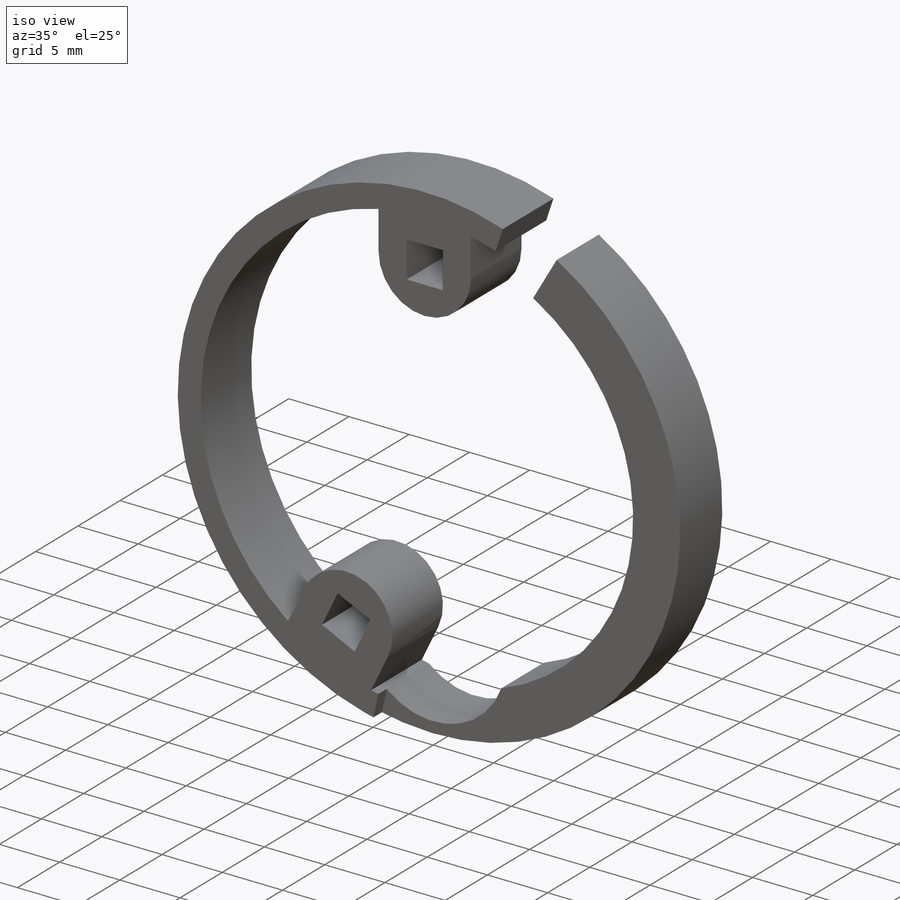
[diagram: iso view]
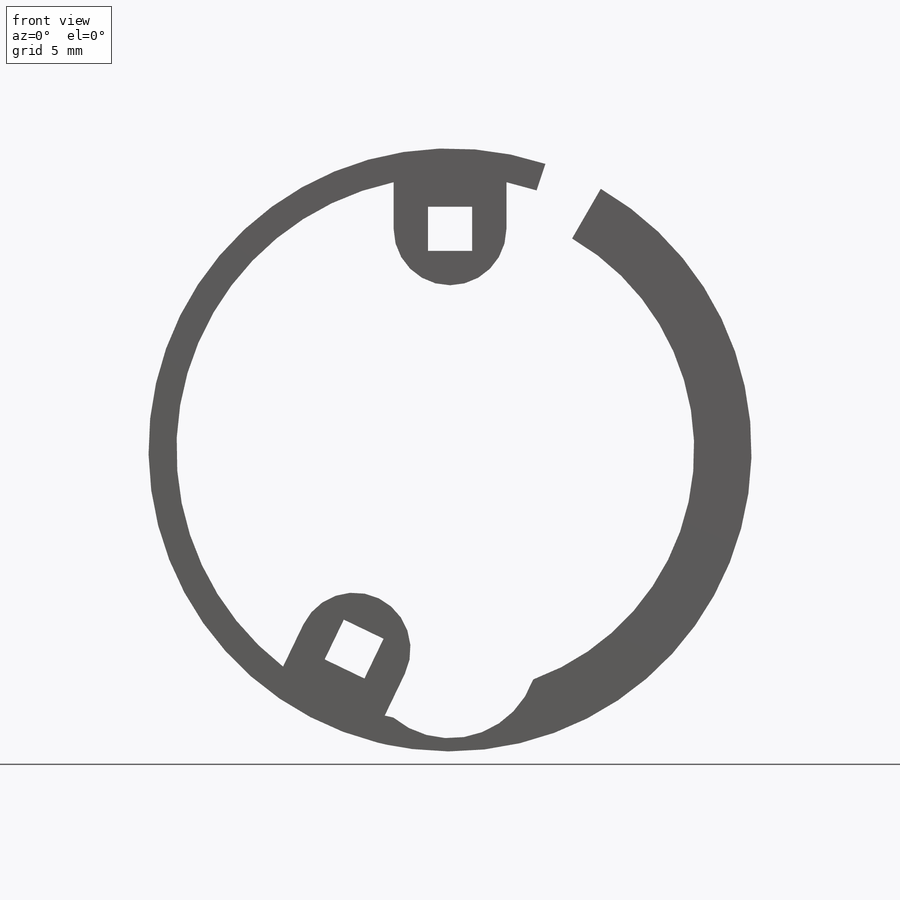
[diagram: front view]
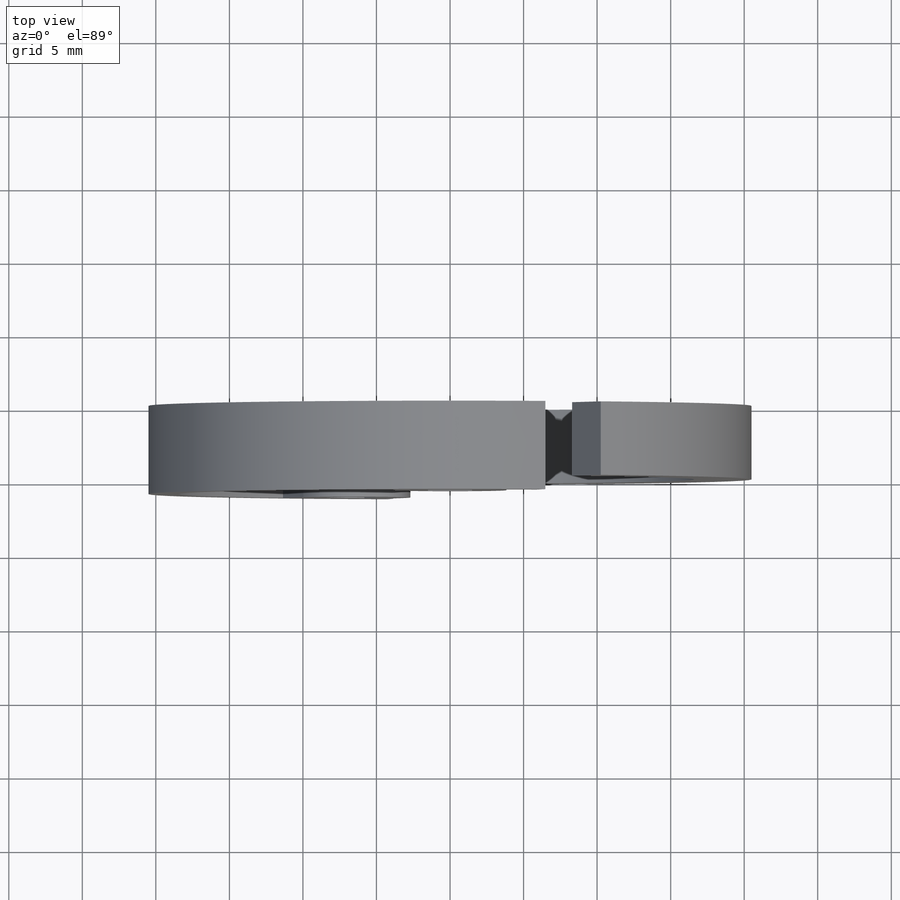
[diagram: top view]
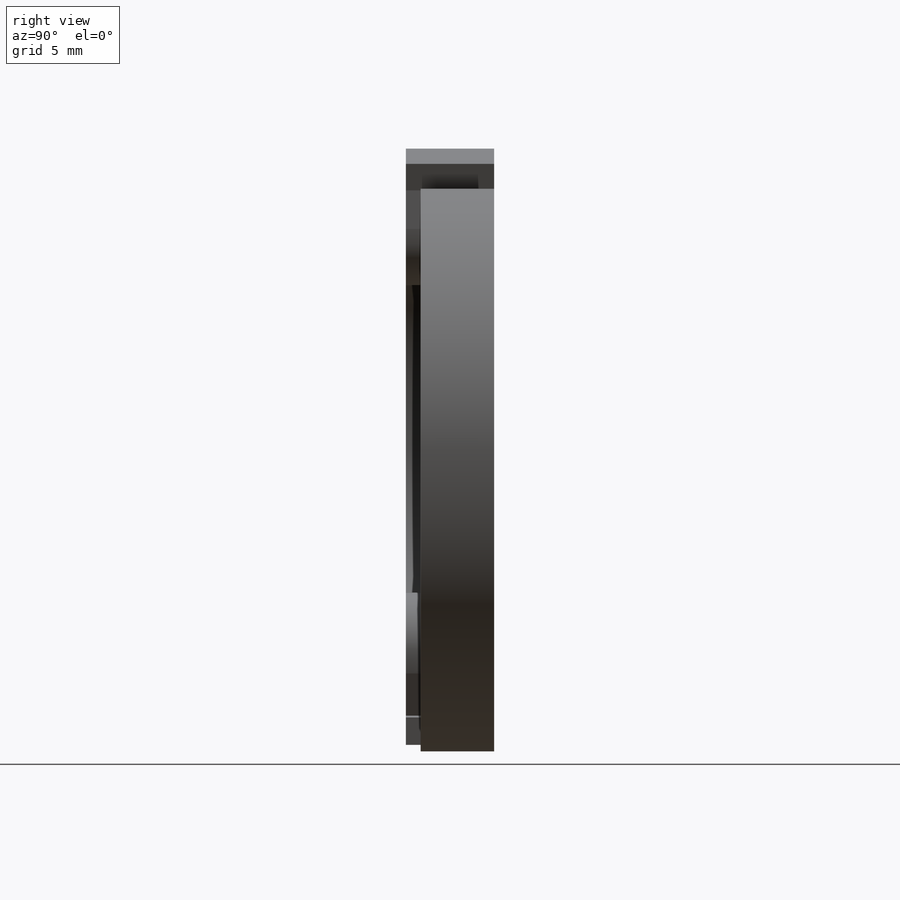
[diagram: right view]
SOLIDWORKS PART (.sldprt)
format: sldprt  version: not decoded by parser v0  size: 311,808 bytes
history: native  units: mm
features: sketch x6, plane x3, extrude x3, material x1, cut_extrude x1 (+10 scaffold rows collapsed)
feature tree (24):
  scaffold x10  (default folders/planes/origin — collapsed)
  material  "Material <não especificado>"
  plane  "Plano frontal"
  plane  "Plano superior"
  plane  "Plano direito"
  sketch  "Esboço2"
  sketch  "Esboço4"  dims[c1.D1=~1.25118mm c2.D1=60.0deg c3.D1=~1.567843mm c4.D1=85.0deg c5.D1=~0.008852mm c6.D1=45.0deg c7.D1=3.0mm c7.D2=0.9mm c7.D3=20.5mm]
  extrude  "Ressalto-extrusão2"  Depth=6mm
  sketch  "Esboço6"  dims[D1=41.0mm]
  sketch  "Esboço7"  dims[D2=~2.118493mm D1=0.0mm]
  cut_extrude  "Corte-extrusão1"  Depth=1mm
  sketch  "Esboço8"  dims[c1.D1=33.2mm c1.D3=37.2mm c1.D2=8.24mm c2.D1=~1.424286mm c3.D1=45.0deg c4.D1=2.8mm c4.D2=2.8mm c5.D1=2.8mm c5.D2=2.8mm c6.D1=2.8mm c6.D2=2.8mm c7.D1=~13.913115mm c8.D1=45.0deg c8.D2=18.6mm c9.D2=45.0deg c9.D3=3.0mm c9.D4=3.0mm c10.D2=~4.196873mm c10.D1=7.0]
  extrude  "Ressalto-extrusão4"  [1 undecoded]
  sketch  "Esboço9"  dims[D2=1.0mm D1=1.0mm]
  extrude  "Ressalto-extrusão5"  Depth=4mm
decode coverage: 8 of 10 modeling features carry decoded parameters
note: ~ marks probable driven/reference dimensions
note: 1 parameter value undecoded
note: suppression state not decoded; provenance and decode notes live in map.json
